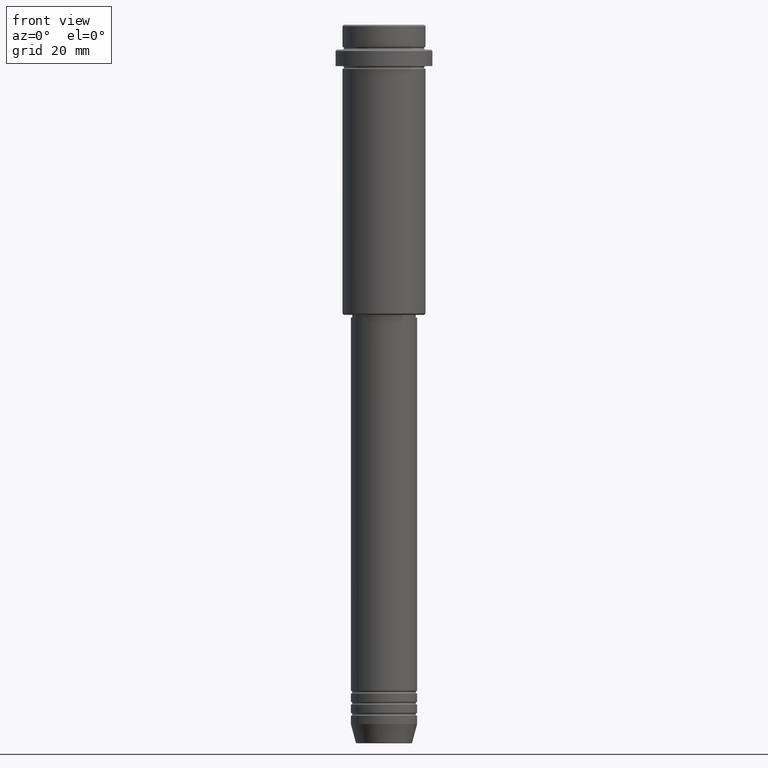
[diagram: clean part render]
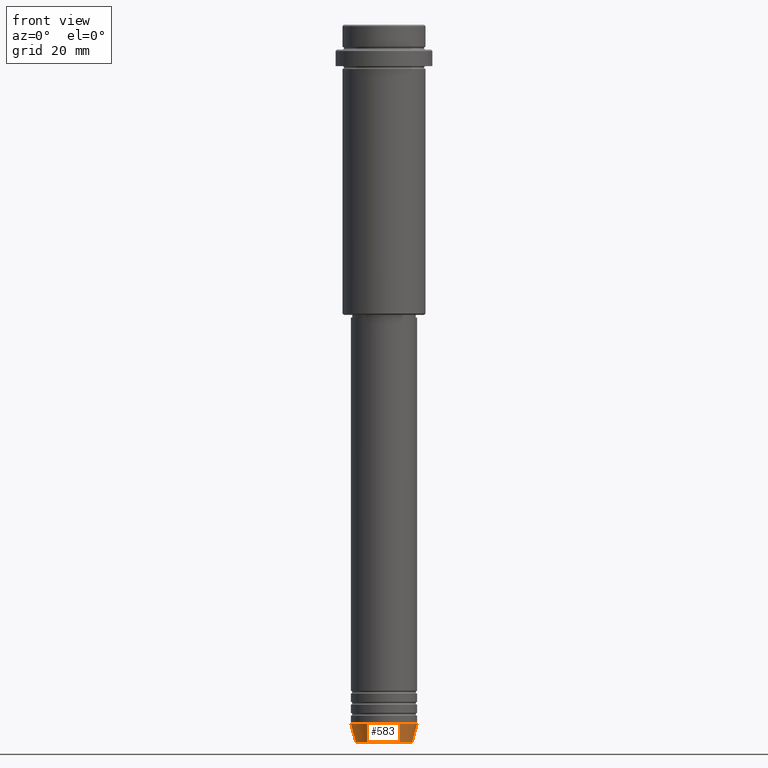
[diagram: same view with one face highlighted and labeled with its STEP entity id]
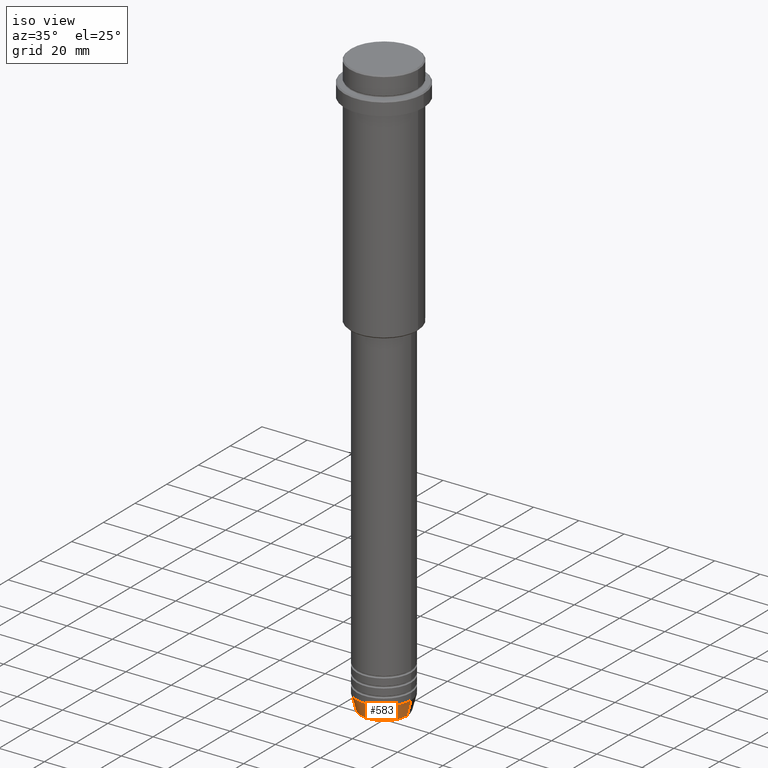
[diagram: same view with one face highlighted and labeled with its STEP entity id]
A machine part, front view. The second image highlights one B-rep face of the part: STEP entity #583.
A second angle (iso view) of the same face is appended — the face is thin or edge-on in the first view.
In plain terms, the highlighted conical surface has half-angle 15 deg.
Its self-contained STEP definition (entity closure, byte-faithful):
#29 = FACE_OUTER_BOUND ( 'NONE', #383, .T. ) ;
#35 = CARTESIAN_POINT ( 'NONE',  ( 12.00000000000000000, 0.000000000000000000, -253.0000000000000000 ) ) ;
#84 = LINE ( 'NONE', #312, #427 ) ;
#109 = CONICAL_SURFACE ( 'NONE', #198, 12.00000000000000000, 0.2617993877991500740 ) ;
#118 = EDGE_CURVE ( 'NONE', #823, #578, #610, .T. ) ;
#192 = EDGE_CURVE ( 'NONE', #1283, #672, #494, .T. ) ;
#198 = AXIS2_PLACEMENT_3D ( 'NONE', #436, #217, #765 ) ;
#217 = DIRECTION ( 'NONE',  ( -0.000000000000000000, -0.000000000000000000, 1.000000000000000000 ) ) ;
#312 = CARTESIAN_POINT ( 'NONE',  ( -12.00000000000000000, 1.469576158976823947E-15, -253.0000000000000000 ) ) ;
#383 = EDGE_LOOP ( 'NONE', ( #1336, #1211, #788, #632 ) ) ;
#427 = VECTOR ( 'NONE', #1188, 1000.000000000000000 ) ;
#436 = CARTESIAN_POINT ( 'NONE',  ( 0.000000000000000000, 0.000000000000000000, -253.0000000000000000 ) ) ;
#451 = AXIS2_PLACEMENT_3D ( 'NONE', #880, #661, #1333 ) ;
#494 = CIRCLE ( 'NONE', #451, 12.00000000000000000 ) ;
#509 = VECTOR ( 'NONE', #596, 1000.000000000000000 ) ;
#528 = EDGE_CURVE ( 'NONE', #823, #1283, #84, .T. ) ;
#539 = AXIS2_PLACEMENT_3D ( 'NONE', #731, #856, #1292 ) ;
#542 = CARTESIAN_POINT ( 'NONE',  ( 12.00000000000000000, 0.000000000000000000, -253.0000000000000000 ) ) ;
#578 = VERTEX_POINT ( 'NONE', #941 ) ;
#583 = ADVANCED_FACE ( 'NONE', ( #29 ), #109, .T. ) ;
#596 = DIRECTION ( 'NONE',  ( 0.2588190451025213501, 0.000000000000000000, 0.9659258262890680902 ) ) ;
#610 = CIRCLE ( 'NONE', #539, 10.22365507213719127 ) ;
#632 = ORIENTED_EDGE ( 'NONE', *, *, #192, .F. ) ;
#661 = DIRECTION ( 'NONE',  ( -0.000000000000000000, -0.000000000000000000, 1.000000000000000000 ) ) ;
#672 = VERTEX_POINT ( 'NONE', #542 ) ;
#698 = LINE ( 'NONE', #35, #509 ) ;
#731 = CARTESIAN_POINT ( 'NONE',  ( 0.000000000000000000, 0.000000000000000000, -259.6294095225512706 ) ) ;
#744 = EDGE_CURVE ( 'NONE', #578, #672, #698, .T. ) ;
#765 = DIRECTION ( 'NONE',  ( 1.000000000000000000, 0.000000000000000000, 0.000000000000000000 ) ) ;
#788 = ORIENTED_EDGE ( 'NONE', *, *, #744, .T. ) ;
#823 = VERTEX_POINT ( 'NONE', #1360 ) ;
#856 = DIRECTION ( 'NONE',  ( -0.000000000000000000, -0.000000000000000000, 1.000000000000000000 ) ) ;
#880 = CARTESIAN_POINT ( 'NONE',  ( 0.000000000000000000, 0.000000000000000000, -253.0000000000000000 ) ) ;
#941 = CARTESIAN_POINT ( 'NONE',  ( 10.22365507213719127, 0.000000000000000000, -259.6294095225512706 ) ) ;
#1033 = CARTESIAN_POINT ( 'NONE',  ( -12.00000000000000000, 1.469576158976823947E-15, -253.0000000000000000 ) ) ;
#1188 = DIRECTION ( 'NONE',  ( -0.2588190451025213501, 3.169619151431772337E-17, 0.9659258262890680902 ) ) ;
#1211 = ORIENTED_EDGE ( 'NONE', *, *, #118, .T. ) ;
#1283 = VERTEX_POINT ( 'NONE', #1033 ) ;
#1292 = DIRECTION ( 'NONE',  ( 1.000000000000000000, 0.000000000000000000, 0.000000000000000000 ) ) ;
#1333 = DIRECTION ( 'NONE',  ( 1.000000000000000000, 0.000000000000000000, 0.000000000000000000 ) ) ;
#1336 = ORIENTED_EDGE ( 'NONE', *, *, #528, .F. ) ;
#1360 = CARTESIAN_POINT ( 'NONE',  ( -10.22365507213719127, 1.360806402472382744E-15, -259.6294095225512706 ) ) ;